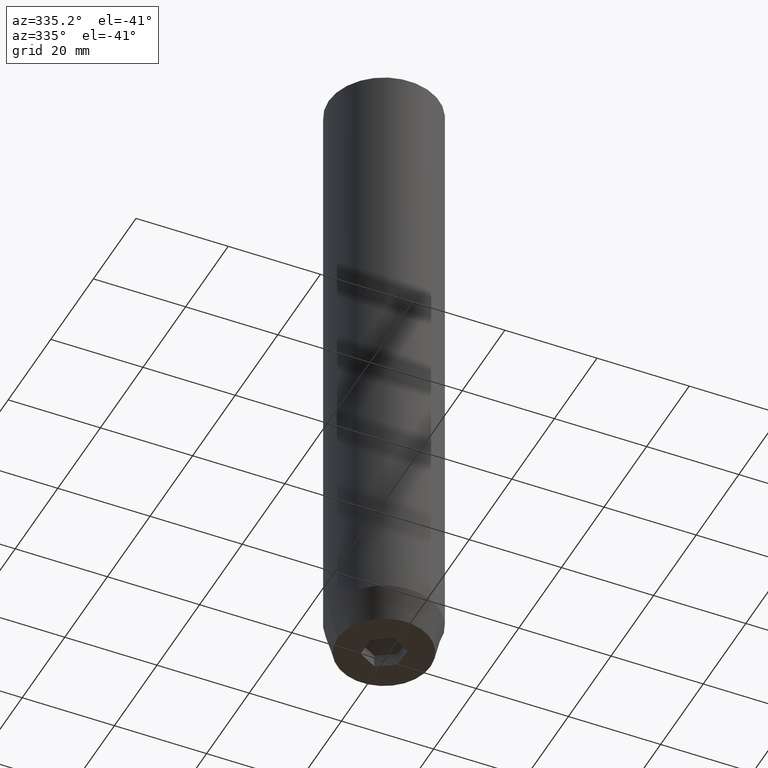
[diagram: clean part render]
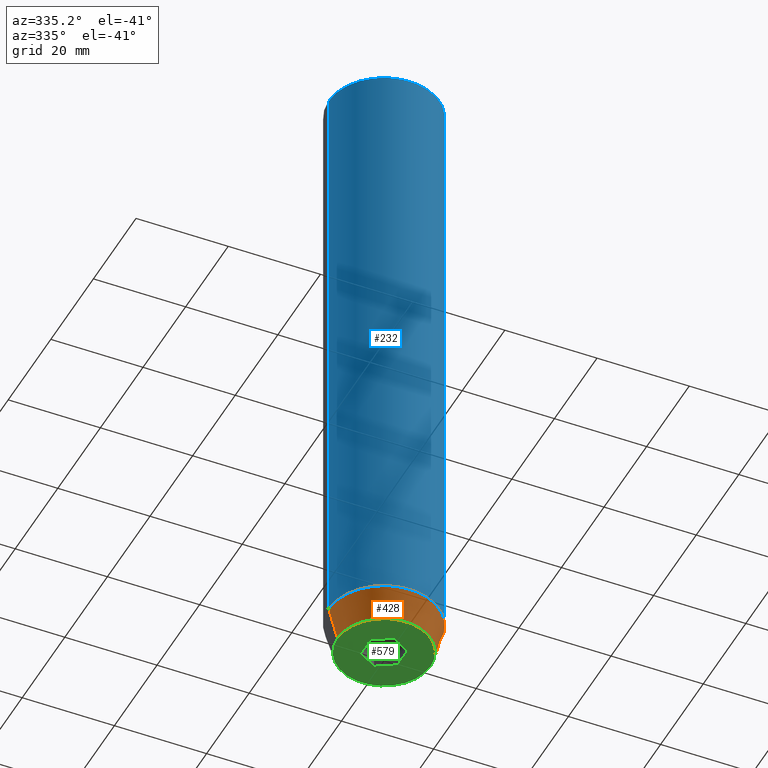
[diagram: same view with three faces highlighted in distinct colors, each labeled with its STEP entity id]
A machine part, auxiliary view with three faces highlighted in distinct colors.
Their STEP definitions:

[orange] entity #428 — the highlighted conical surface has half-angle 15 deg.
#13 = ORIENTED_EDGE ( 'NONE', *, *, #138, .T. ) ;
#15 = VECTOR ( 'NONE', #540, 1000.000000000000000 ) ;
#19 = VERTEX_POINT ( 'NONE', #143 ) ;
#34 = DIRECTION ( 'NONE',  ( 1.000000000000000000, 0.000000000000000000, 0.000000000000000000 ) ) ;
#62 = ORIENTED_EDGE ( 'NONE', *, *, #366, .F. ) ;
#64 = CIRCLE ( 'NONE', #211, 12.00000000000000000 ) ;
#69 = CARTESIAN_POINT ( 'NONE',  ( 0.000000000000000000, 0.000000000000000000, -133.0000000000000000 ) ) ;
#84 = ORIENTED_EDGE ( 'NONE', *, *, #339, .F. ) ;
#88 = DIRECTION ( 'NONE',  ( -0.2588190451025213501, 3.169619151431772337E-17, 0.9659258262890680902 ) ) ;
#138 = EDGE_CURVE ( 'NONE', #356, #19, #187, .T. ) ;
#143 = CARTESIAN_POINT ( 'NONE',  ( 10.12435565298213547, 0.000000000000000000, -140.0000000000000000 ) ) ;
#147 = DIRECTION ( 'NONE',  ( 1.000000000000000000, 0.000000000000000000, 0.000000000000000000 ) ) ;
#177 = CARTESIAN_POINT ( 'NONE',  ( 12.00000000000000000, 0.000000000000000000, -133.0000000000000000 ) ) ;
#187 = CIRCLE ( 'NONE', #316, 10.12435565298213547 ) ;
#194 = EDGE_CURVE ( 'NONE', #19, #494, #261, .T. ) ;
#211 = AXIS2_PLACEMENT_3D ( 'NONE', #506, #417, #147 ) ;
#234 = LINE ( 'NONE', #458, #382 ) ;
#243 = AXIS2_PLACEMENT_3D ( 'NONE', #69, #251, #34 ) ;
#251 = DIRECTION ( 'NONE',  ( -0.000000000000000000, -0.000000000000000000, 1.000000000000000000 ) ) ;
#261 = LINE ( 'NONE', #177, #15 ) ;
#271 = CARTESIAN_POINT ( 'NONE',  ( 0.000000000000000000, 0.000000000000000000, -140.0000000000000000 ) ) ;
#290 = FACE_OUTER_BOUND ( 'NONE', #303, .T. ) ;
#303 = EDGE_LOOP ( 'NONE', ( #84, #13, #476, #62 ) ) ;
#316 = AXIS2_PLACEMENT_3D ( 'NONE', #271, #538, #359 ) ;
#335 = CARTESIAN_POINT ( 'NONE',  ( -12.00000000000000000, 1.469576158976823947E-15, -133.0000000000000000 ) ) ;
#336 = CARTESIAN_POINT ( 'NONE',  ( 12.00000000000000000, 0.000000000000000000, -133.0000000000000000 ) ) ;
#339 = EDGE_CURVE ( 'NONE', #356, #375, #234, .T. ) ;
#356 = VERTEX_POINT ( 'NONE', #461 ) ;
#359 = DIRECTION ( 'NONE',  ( 1.000000000000000000, 0.000000000000000000, 0.000000000000000000 ) ) ;
#366 = EDGE_CURVE ( 'NONE', #375, #494, #64, .T. ) ;
#375 = VERTEX_POINT ( 'NONE', #335 ) ;
#382 = VECTOR ( 'NONE', #88, 1000.000000000000000 ) ;
#417 = DIRECTION ( 'NONE',  ( -0.000000000000000000, -0.000000000000000000, 1.000000000000000000 ) ) ;
#428 = ADVANCED_FACE ( 'NONE', ( #290 ), #503, .T. ) ;
#458 = CARTESIAN_POINT ( 'NONE',  ( -12.00000000000000000, 1.469576158976823947E-15, -133.0000000000000000 ) ) ;
#461 = CARTESIAN_POINT ( 'NONE',  ( -10.12435565298213547, 1.354726066681111050E-15, -140.0000000000000000 ) ) ;
#476 = ORIENTED_EDGE ( 'NONE', *, *, #194, .T. ) ;
#494 = VERTEX_POINT ( 'NONE', #336 ) ;
#503 = CONICAL_SURFACE ( 'NONE', #243, 12.00000000000000000, 0.2617993877991500740 ) ;
#506 = CARTESIAN_POINT ( 'NONE',  ( 0.000000000000000000, 0.000000000000000000, -133.0000000000000000 ) ) ;
#538 = DIRECTION ( 'NONE',  ( -0.000000000000000000, -0.000000000000000000, 1.000000000000000000 ) ) ;
#540 = DIRECTION ( 'NONE',  ( 0.2588190451025213501, 0.000000000000000000, 0.9659258262890680902 ) ) ;

[blue] entity #232 — the highlighted cylindrical surface (partial cylindrical patch) has radius 12 mm, axis along (-0, -0, 1).
#8 = VECTOR ( 'NONE', #570, 1000.000000000000000 ) ;
#9 = ORIENTED_EDGE ( 'NONE', *, *, #495, .F. ) ;
#11 = EDGE_CURVE ( 'NONE', #70, #80, #253, .T. ) ;
#18 = CARTESIAN_POINT ( 'NONE',  ( 12.00000000000000000, 0.000000000000000000, -0.5000000000000056621 ) ) ;
#55 = VECTOR ( 'NONE', #195, 1000.000000000000000 ) ;
#64 = CIRCLE ( 'NONE', #211, 12.00000000000000000 ) ;
#66 = EDGE_LOOP ( 'NONE', ( #9, #433, #343, #377 ) ) ;
#70 = VERTEX_POINT ( 'NONE', #18 ) ;
#80 = VERTEX_POINT ( 'NONE', #200 ) ;
#83 = CYLINDRICAL_SURFACE ( 'NONE', #104, 12.00000000000000000 ) ;
#104 = AXIS2_PLACEMENT_3D ( 'NONE', #119, #306, #482 ) ;
#119 = CARTESIAN_POINT ( 'NONE',  ( 0.000000000000000000, 0.000000000000000000, 0.000000000000000000 ) ) ;
#147 = DIRECTION ( 'NONE',  ( 1.000000000000000000, 0.000000000000000000, 0.000000000000000000 ) ) ;
#149 = CARTESIAN_POINT ( 'NONE',  ( -12.00000000000000000, 1.469576158976823947E-15, 0.000000000000000000 ) ) ;
#175 = AXIS2_PLACEMENT_3D ( 'NONE', #475, #435, #212 ) ;
#195 = DIRECTION ( 'NONE',  ( -0.000000000000000000, -0.000000000000000000, 1.000000000000000000 ) ) ;
#200 = CARTESIAN_POINT ( 'NONE',  ( -12.00000000000000000, 1.469576158976823947E-15, -0.5000000000000056621 ) ) ;
#211 = AXIS2_PLACEMENT_3D ( 'NONE', #506, #417, #147 ) ;
#212 = DIRECTION ( 'NONE',  ( 1.000000000000000000, 0.000000000000000000, 0.000000000000000000 ) ) ;
#232 = ADVANCED_FACE ( 'NONE', ( #353 ), #83, .T. ) ;
#253 = CIRCLE ( 'NONE', #175, 12.00000000000000000 ) ;
#304 = EDGE_CURVE ( 'NONE', #494, #70, #416, .T. ) ;
#306 = DIRECTION ( 'NONE',  ( -0.000000000000000000, -0.000000000000000000, 1.000000000000000000 ) ) ;
#335 = CARTESIAN_POINT ( 'NONE',  ( -12.00000000000000000, 1.469576158976823947E-15, -133.0000000000000000 ) ) ;
#336 = CARTESIAN_POINT ( 'NONE',  ( 12.00000000000000000, 0.000000000000000000, -133.0000000000000000 ) ) ;
#343 = ORIENTED_EDGE ( 'NONE', *, *, #304, .T. ) ;
#353 = FACE_OUTER_BOUND ( 'NONE', #66, .T. ) ;
#366 = EDGE_CURVE ( 'NONE', #375, #494, #64, .T. ) ;
#375 = VERTEX_POINT ( 'NONE', #335 ) ;
#377 = ORIENTED_EDGE ( 'NONE', *, *, #11, .T. ) ;
#416 = LINE ( 'NONE', #421, #55 ) ;
#417 = DIRECTION ( 'NONE',  ( -0.000000000000000000, -0.000000000000000000, 1.000000000000000000 ) ) ;
#421 = CARTESIAN_POINT ( 'NONE',  ( 12.00000000000000000, 0.000000000000000000, 0.000000000000000000 ) ) ;
#433 = ORIENTED_EDGE ( 'NONE', *, *, #366, .T. ) ;
#435 = DIRECTION ( 'NONE',  ( 0.000000000000000000, 0.000000000000000000, -1.000000000000000000 ) ) ;
#475 = CARTESIAN_POINT ( 'NONE',  ( 0.000000000000000000, 0.000000000000000000, -0.5000000000000056621 ) ) ;
#482 = DIRECTION ( 'NONE',  ( 1.000000000000000000, 0.000000000000000000, 0.000000000000000000 ) ) ;
#494 = VERTEX_POINT ( 'NONE', #336 ) ;
#495 = EDGE_CURVE ( 'NONE', #375, #80, #516, .T. ) ;
#506 = CARTESIAN_POINT ( 'NONE',  ( 0.000000000000000000, 0.000000000000000000, -133.0000000000000000 ) ) ;
#516 = LINE ( 'NONE', #149, #8 ) ;
#570 = DIRECTION ( 'NONE',  ( -0.000000000000000000, -0.000000000000000000, 1.000000000000000000 ) ) ;

[green] entity #579 — the highlighted planar face has unit normal (0, 0, -1).
#19 = VERTEX_POINT ( 'NONE', #143 ) ;
#24 = VECTOR ( 'NONE', #299, 1000.000000000000114 ) ;
#39 = CARTESIAN_POINT ( 'NONE',  ( -4.000000000000000000, 0.000000000000000000, -140.0000000000000000 ) ) ;
#40 = FACE_OUTER_BOUND ( 'NONE', #580, .T. ) ;
#41 = CARTESIAN_POINT ( 'NONE',  ( 2.000000000000000444, 3.464101615137754386, -140.0000000000000000 ) ) ;
#72 = AXIS2_PLACEMENT_3D ( 'NONE', #309, #396, #586 ) ;
#73 = CARTESIAN_POINT ( 'NONE',  ( 0.000000000000000000, 10.12435565298213547, -140.0000000000000000 ) ) ;
#75 = CARTESIAN_POINT ( 'NONE',  ( 4.000000000000000000, -2.309401076758502480, -140.0000000000000000 ) ) ;
#93 = DIRECTION ( 'NONE',  ( 0.8660254037844387076, 0.5000000000000001110, 0.000000000000000000 ) ) ;
#106 = VERTEX_POINT ( 'NONE', #365 ) ;
#107 = LINE ( 'NONE', #427, #24 ) ;
#110 = VERTEX_POINT ( 'NONE', #440 ) ;
#113 = ORIENTED_EDGE ( 'NONE', *, *, #422, .F. ) ;
#122 = EDGE_CURVE ( 'NONE', #110, #399, #225, .T. ) ;
#126 = EDGE_CURVE ( 'NONE', #399, #173, #405, .T. ) ;
#138 = EDGE_CURVE ( 'NONE', #356, #19, #187, .T. ) ;
#141 = CARTESIAN_POINT ( 'NONE',  ( 4.000000000000000000, 2.309401076758503368, -140.0000000000000000 ) ) ;
#143 = CARTESIAN_POINT ( 'NONE',  ( 10.12435565298213547, 0.000000000000000000, -140.0000000000000000 ) ) ;
#144 = VECTOR ( 'NONE', #218, 1000.000000000000000 ) ;
#145 = ORIENTED_EDGE ( 'NONE', *, *, #536, .F. ) ;
#151 = EDGE_CURVE ( 'NONE', #19, #356, #402, .T. ) ;
#158 = CARTESIAN_POINT ( 'NONE',  ( 4.336808689942017736E-16, -4.618802153517006737, -140.0000000000000000 ) ) ;
#166 = DIRECTION ( 'NONE',  ( 0.000000000000000000, 0.000000000000000000, -1.000000000000000000 ) ) ;
#173 = VERTEX_POINT ( 'NONE', #75 ) ;
#183 = DIRECTION ( 'NONE',  ( 0.000000000000000000, -1.000000000000000000, 0.000000000000000000 ) ) ;
#187 = CIRCLE ( 'NONE', #316, 10.12435565298213547 ) ;
#197 = AXIS2_PLACEMENT_3D ( 'NONE', #73, #166, #349 ) ;
#201 = EDGE_CURVE ( 'NONE', #106, #418, #318, .T. ) ;
#206 = FACE_BOUND ( 'NONE', #582, .T. ) ;
#218 = DIRECTION ( 'NONE',  ( 0.8660254037844385966, -0.5000000000000001110, 0.000000000000000000 ) ) ;
#225 = LINE ( 'NONE', #41, #144 ) ;
#236 = CARTESIAN_POINT ( 'NONE',  ( -4.000000000000000000, 2.309401076758503368, -140.0000000000000000 ) ) ;
#271 = CARTESIAN_POINT ( 'NONE',  ( 0.000000000000000000, 0.000000000000000000, -140.0000000000000000 ) ) ;
#299 = DIRECTION ( 'NONE',  ( -0.8660254037844384856, -0.5000000000000002220, 0.000000000000000000 ) ) ;
#309 = CARTESIAN_POINT ( 'NONE',  ( 0.000000000000000000, 0.000000000000000000, -140.0000000000000000 ) ) ;
#316 = AXIS2_PLACEMENT_3D ( 'NONE', #271, #538, #359 ) ;
#318 = LINE ( 'NONE', #39, #459 ) ;
#333 = DIRECTION ( 'NONE',  ( -0.8660254037844384856, 0.5000000000000002220, 0.000000000000000000 ) ) ;
#349 = DIRECTION ( 'NONE',  ( -1.000000000000000000, 0.000000000000000000, -0.000000000000000000 ) ) ;
#354 = VECTOR ( 'NONE', #93, 999.9999999999998863 ) ;
#356 = VERTEX_POINT ( 'NONE', #461 ) ;
#359 = DIRECTION ( 'NONE',  ( 1.000000000000000000, 0.000000000000000000, 0.000000000000000000 ) ) ;
#365 = CARTESIAN_POINT ( 'NONE',  ( -4.000000000000000000, -2.309401076758503368, -140.0000000000000000 ) ) ;
#370 = ORIENTED_EDGE ( 'NONE', *, *, #126, .F. ) ;
#381 = VECTOR ( 'NONE', #183, 1000.000000000000000 ) ;
#387 = ORIENTED_EDGE ( 'NONE', *, *, #397, .F. ) ;
#396 = DIRECTION ( 'NONE',  ( -0.000000000000000000, -0.000000000000000000, 1.000000000000000000 ) ) ;
#397 = EDGE_CURVE ( 'NONE', #546, #106, #559, .T. ) ;
#399 = VERTEX_POINT ( 'NONE', #141 ) ;
#402 = CIRCLE ( 'NONE', #72, 10.12435565298213547 ) ;
#405 = LINE ( 'NONE', #457, #381 ) ;
#418 = VERTEX_POINT ( 'NONE', #236 ) ;
#419 = CARTESIAN_POINT ( 'NONE',  ( -2.000000000000000888, -3.464101615137754386, -140.0000000000000000 ) ) ;
#422 = EDGE_CURVE ( 'NONE', #418, #110, #553, .T. ) ;
#427 = CARTESIAN_POINT ( 'NONE',  ( 2.000000000000000888, -3.464101615137754386, -140.0000000000000000 ) ) ;
#440 = CARTESIAN_POINT ( 'NONE',  ( 0.000000000000000000, 4.618802153517006737, -140.0000000000000000 ) ) ;
#457 = CARTESIAN_POINT ( 'NONE',  ( 4.000000000000000000, 0.000000000000000000, -140.0000000000000000 ) ) ;
#459 = VECTOR ( 'NONE', #489, 1000.000000000000000 ) ;
#461 = CARTESIAN_POINT ( 'NONE',  ( -10.12435565298213547, 1.354726066681111050E-15, -140.0000000000000000 ) ) ;
#480 = ORIENTED_EDGE ( 'NONE', *, *, #201, .F. ) ;
#487 = PLANE ( 'NONE',  #197 ) ;
#489 = DIRECTION ( 'NONE',  ( 0.000000000000000000, 1.000000000000000000, 0.000000000000000000 ) ) ;
#520 = ORIENTED_EDGE ( 'NONE', *, *, #138, .F. ) ;
#522 = ORIENTED_EDGE ( 'NONE', *, *, #151, .F. ) ;
#525 = ORIENTED_EDGE ( 'NONE', *, *, #122, .F. ) ;
#536 = EDGE_CURVE ( 'NONE', #173, #546, #107, .T. ) ;
#538 = DIRECTION ( 'NONE',  ( -0.000000000000000000, -0.000000000000000000, 1.000000000000000000 ) ) ;
#546 = VERTEX_POINT ( 'NONE', #158 ) ;
#549 = VECTOR ( 'NONE', #333, 1000.000000000000114 ) ;
#553 = LINE ( 'NONE', #562, #354 ) ;
#559 = LINE ( 'NONE', #419, #549 ) ;
#562 = CARTESIAN_POINT ( 'NONE',  ( -2.000000000000000000, 3.464101615137754830, -140.0000000000000000 ) ) ;
#579 = ADVANCED_FACE ( 'NONE', ( #206, #40 ), #487, .T. ) ;
#580 = EDGE_LOOP ( 'NONE', ( #522, #520 ) ) ;
#582 = EDGE_LOOP ( 'NONE', ( #113, #480, #387, #145, #370, #525 ) ) ;
#586 = DIRECTION ( 'NONE',  ( 1.000000000000000000, 0.000000000000000000, 0.000000000000000000 ) ) ;